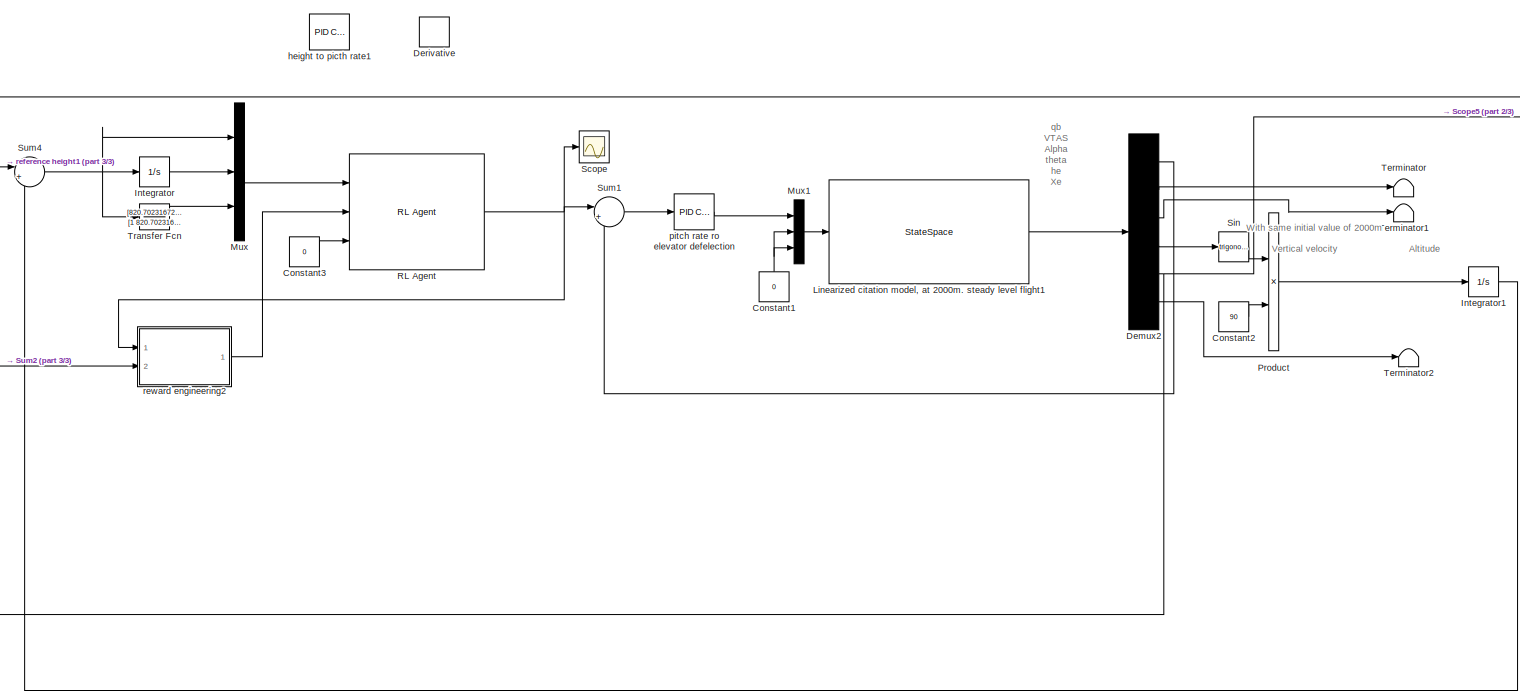
[diagram: root canvas - part 1/3, most of the canvas]
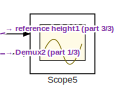
[diagram: root canvas - part 2/3, top right region]
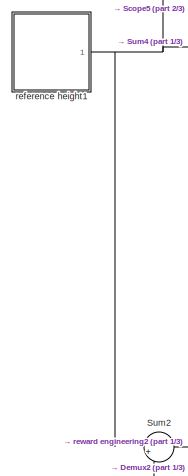
[diagram: root canvas - part 3/3, middle left region]
MODEL slx_4d9990ba3c5e
KIND model
CONFIG AbsTol = auto
CONFIG EnableMultiTasking = off
CONFIG FixedStep = auto
CONFIG MaxStep = auto
CONFIG MinStep = auto
CONFIG RelTol = 1e-3
CONFIG SampleTimeConstraint = Unconstrained
CONFIG SolverName = VariableStepAuto
CONFIG StartTime = 0.0
CONFIG StopTime = 500
BLOCK [Constant] Constant1
  NameLocation = right
  Value = 0
BLOCK [Constant] Constant2
  Value = 90
BLOCK [Constant] Constant3
  Value = 0
BLOCK [Demux] Demux2
  Outputs = 6
  Ports = [1, 6]
BLOCK [Derivative] Derivative
  Commented = on
BLOCK [Integrator] Integrator
  Ports = [1, 1]
BLOCK [Integrator] Integrator1
  Ports = [1, 1]
BLOCK [StateSpace] Linearized citation model, at 2000m. steady level flight1
  A = Alin
  B = Blin
  C = Clin
  D = Dlin
  InitialCondition = 0
  Ports = [1, 1]
BLOCK [Mux] Mux
  DisplayOption = bar
  Inputs = 3
  Ports = [3, 1]
BLOCK [Mux] Mux1
  DisplayOption = bar
  Inputs = 3
  Ports = [3, 1]
BLOCK [Product] Product
  Ports = [2, 1]
BLOCK [Reference] RL Agent  REF=rllib/RL Agent
  Ports = [3, 1]
  SourceBlock = rllib/RL Agent
  SourceProductBaseCode = RL
  SourceType = RL Agent
BLOCK [Scope] Scope
  Floating = off
  NumInputPorts = 1
  Ports = [1]
  ScopeSpecificationString = Simulink.scopes.TimeScopeBlockCfg('CurrentConfiguration', extmgr.ConfigurationSet(extmgr.Configuration('Core','General UI',true),extmgr.Configuration('Core','Source UI',true),extmgr.Configuration('Sources','WiredSimulink',true,'DataLoggingVariableName','ScopeData4'),extmgr.Configuration('Visuals','Time Domain',true,'SerializedDisplays',{struct('MinYLimReal','-3.23406','MaxYLimReal','3.69267','YLab...<+1430ch>
BLOCK [Scope] Scope5
  Floating = off
  NumInputPorts = 2
  Ports = [2]
  ScopeSpecificationString = Simulink.scopes.TimeScopeBlockCfg('CurrentConfiguration', extmgr.ConfigurationSet(extmgr.Configuration('Core','General UI',true),extmgr.Configuration('Core','Source UI',true),extmgr.Configuration('Sources','WiredSimulink',true,'DataLoggingVariableName','ScopeData5'),extmgr.Configuration('Visuals','Time Domain',true,'SerializedDisplays',{struct('MinYLimReal','-87.45783','MaxYLimReal','86.09791','YL...<+1560ch>
BLOCK [Trigonometry] Sin
  Ports = [1, 1]
BLOCK [Sum] Sum1
  Inputs = |+-
  Ports = [2, 1]
BLOCK [Sum] Sum2
  Inputs = |+-
  Ports = [2, 1]
BLOCK [Sum] Sum4
  Inputs = |+-
  Ports = [2, 1]
BLOCK [Terminator] Terminator
BLOCK [Terminator] Terminator1
BLOCK [Terminator] Terminator2
BLOCK [TransferFcn] Transfer Fcn
  Denominator = [1 820.702316726466]
  Numerator = [820.702316726466 0]
BLOCK [Reference] height to picth rate1  REF=pid_lib/PID Controller
  Commented = on
  Ports = [1, 1]
  SourceBlock = pid_lib/PID Controller
  SourceProductBaseCode = SL
  SourceType = PID 1dof
BLOCK [Reference] pitch rate ro elevator defelection  REF=pid_lib/PID Controller
  Ports = [1, 1]
  SourceBlock = pid_lib/PID Controller
  SourceProductBaseCode = SL
  SourceType = PID 1dof
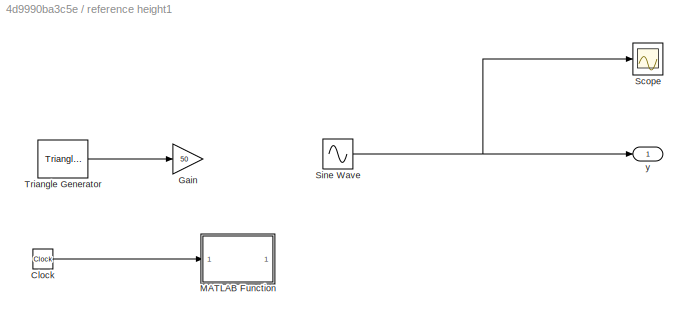
BLOCK [SubSystem] reference height1
  Ports = [0, 1]
  RequestExecContextInheritance = off
BLOCK [Clock] reference height1/Clock
  Commented = on
BLOCK [Gain] reference height1/Gain
  Commented = on
  Gain = 50
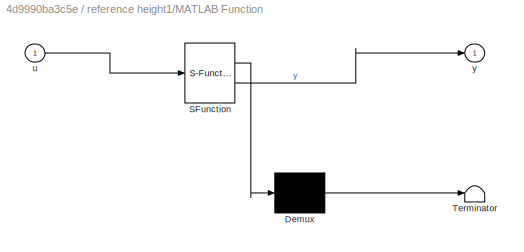
BLOCK [SubSystem] reference height1/MATLAB Function
  Commented = on
  ErrorFcn = Stateflow.Translate.translate
  PermitHierarchicalResolution = ExplicitOnly
  Ports = [1, 1]
  RequestExecContextInheritance = off
  SFBlockType = MATLAB Function
  TreatAsAtomicUnit = on
BLOCK [Demux] reference height1/MATLAB Function/ Demux 
  Outputs = 1
  Ports = [1, 1]
BLOCK [S-Function] reference height1/MATLAB Function/ SFunction 
  EnableBusSupport = on
  FunctionName = sf_sfun
  PortCounts = [1 2]
  Ports = [1, 2]
  SFcnIsStateOwnerBlock = off
  SFunctionDeploymentMode = off
  Tag = Stateflow S-Function 3
BLOCK [Terminator] reference height1/MATLAB Function/ Terminator 
BLOCK [Inport] reference height1/MATLAB Function/u
BLOCK [Outport] reference height1/MATLAB Function/y
BLOCK [Scope] reference height1/Scope
  Floating = off
  NumInputPorts = 1
  Ports = [1]
  ScopeSpecificationString = Simulink.scopes.TimeScopeBlockCfg('CurrentConfiguration', extmgr.ConfigurationSet(extmgr.Configuration('Core','General UI',true),extmgr.Configuration('Core','Source UI',true),extmgr.Configuration('Sources','WiredSimulink',true,'DataLoggingVariableName','ScopeData3'),extmgr.Configuration('Visuals','Time Domain',true,'SerializedDisplays',{struct('MinYLimReal','-43.51238','MaxYLimReal','60.39026','YL...<+1401ch>
BLOCK [Sin] reference height1/Sine Wave
  Amplitude = 50
  Frequency = 2*pi/20
  Ports = [0, 1]
  SampleTime = 0
BLOCK [Reference] reference height1/Triangle Generator  REF=powerlib_meascontrol/Pulse & Signal
Generators/Triangle
Generator
  Commented = on
  Ports = [0, 1]
  SourceBlock = powerlib_meascontrol/Pulse & Signal\nGenerators/Triangle\nGenerator
  SourceProductBaseCode = PS
  SourceType = Triangle Generator
BLOCK [Outport] reference height1/y
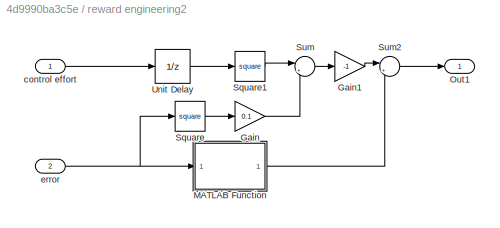
BLOCK [SubSystem] reward engineering2
  Ports = [2, 1]
  RequestExecContextInheritance = off
BLOCK [Gain] reward engineering2/Gain
  Gain = 0.1
BLOCK [Gain] reward engineering2/Gain1
  Gain = -1
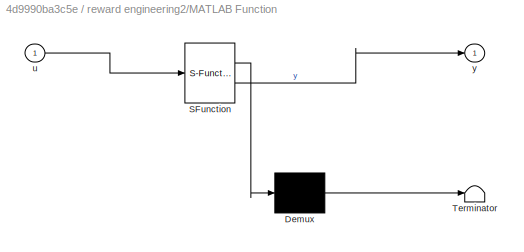
BLOCK [SubSystem] reward engineering2/MATLAB Function
  ErrorFcn = Stateflow.Translate.translate
  PermitHierarchicalResolution = ExplicitOnly
  Ports = [1, 1]
  RequestExecContextInheritance = off
  SFBlockType = MATLAB Function
  TreatAsAtomicUnit = on
BLOCK [Demux] reward engineering2/MATLAB Function/ Demux 
  Outputs = 1
  Ports = [1, 1]
BLOCK [S-Function] reward engineering2/MATLAB Function/ SFunction 
  EnableBusSupport = on
  FunctionName = sf_sfun
  PortCounts = [1 2]
  Ports = [1, 2]
  SFcnIsStateOwnerBlock = off
  SFunctionDeploymentMode = off
  Tag = Stateflow S-Function 5
BLOCK [Terminator] reward engineering2/MATLAB Function/ Terminator 
BLOCK [Inport] reward engineering2/MATLAB Function/u
BLOCK [Outport] reward engineering2/MATLAB Function/y
BLOCK [Outport] reward engineering2/Out1
  NameLocation = top
BLOCK [Math] reward engineering2/Square
  Operator = square
  Ports = [1, 1]
BLOCK [Math] reward engineering2/Square1
  Operator = square
  Ports = [1, 1]
BLOCK [Sum] reward engineering2/Sum
  Inputs = |++
  Ports = [2, 1]
BLOCK [Sum] reward engineering2/Sum2
  Inputs = |++
  Ports = [2, 1]
BLOCK [UnitDelay] reward engineering2/Unit Delay
  HasFrameUpgradeWarning = on
  SampleTime = -1
BLOCK [Inport] reward engineering2/control effort
BLOCK [Inport] reward engineering2/error
  Port = 2
ANNOTATION (root): With same initial value of 2000m
ANNOTATION (root): qb VTAS Alpha theta he Xe
ANNOTATION (root): Altitude
ANNOTATION (root): Vertical velocity
NET Constant1:1 -> Mux1:2, Mux1:3
LINE Constant2:1 -> Product:2
LINE Constant3:1 -> RL Agent:3
LINE Demux2:1 -> Sum1:2
LINE Demux2:2 -> Terminator:1
LINE Demux2:3 -> Terminator1:1
LINE Demux2:4 -> Sin:1
NET Demux2:5 -> Scope5:2, Sum2:2
LINE Demux2:6 -> Terminator2:1
LINE Integrator1:1 -> Sum4:2
LINE Integrator:1 -> Mux:2
LINE Linearized citation model, at 2000m. steady level flight1:1 -> Demux2:1
LINE Mux1:1 -> Linearized citation model, at 2000m. steady level flight1:1
LINE Mux:1 -> RL Agent:1
LINE Product:1 -> Integrator1:1
NET RL Agent:1 -> Scope:1, Sum1:1, reward engineering2:1
LINE Sin:1 -> Product:1
LINE Sum1:1 -> pitch rate ro elevator defelection:1
LINE Sum2:1 -> reward engineering2:2
NET Sum4:1 -> Integrator:1, Mux:1, Transfer Fcn:1
LINE Transfer Fcn:1 -> Mux:3
LINE pitch rate ro elevator defelection:1 -> Mux1:1
LINE reference height1/Clock:1 -> reference height1/MATLAB Function:1
NET reference height1/Sine Wave:1 -> reference height1/Scope:1, reference height1/y:1
LINE reference height1/Triangle Generator:1 -> reference height1/Gain:1
NET reference height1:1 -> Scope5:1, Sum2:1, Sum4:1
LINE reward engineering2/Gain1:1 -> reward engineering2/Sum2:1
LINE reward engineering2/Gain:1 -> reward engineering2/Sum:2
LINE reward engineering2/MATLAB Function:1 -> reward engineering2/Sum2:2
LINE reward engineering2/Square1:1 -> reward engineering2/Sum:1
LINE reward engineering2/Square:1 -> reward engineering2/Gain:1
LINE reward engineering2/Sum2:1 -> reward engineering2/Out1:1
LINE reward engineering2/Sum:1 -> reward engineering2/Gain1:1
LINE reward engineering2/Unit Delay:1 -> reward engineering2/Square1:1
LINE reward engineering2/control effort:1 -> reward engineering2/Unit Delay:1
NET reward engineering2/error:1 -> reward engineering2/MATLAB Function:1, reward engineering2/Square:1
LINE reward engineering2:1 -> RL Agent:2
note: NET lines group one-source signal fan-out (src -> all destinations, sorted); 1:1 wires keep LINE
CHART reward engineering2/MATLAB Function states=1 transitions=1
  STATE_LABEL 'eML_blk_kernel()'
  STATE_LABEL 'SCRIPT:\nfunction y = fcn(u)\nif u^2<69\n    y=1\nelse\n    y=0\nend'
CHART reference height1/MATLAB Function states=1 transitions=1
  STATE_LABEL 'eML_blk_kernel()'
  STATE_LABEL 'SCRIPT:\nfunction y = fcn(u)\nif u < 8\n    y = 0\nelseif u>8 & u <12\n    y = -80+10*u\nelseif u >=12\n    y = 40\nelse\n    y = 0\nend\n'
CHART  states=0 transitions=0
CHART  states=0 transitions=0
